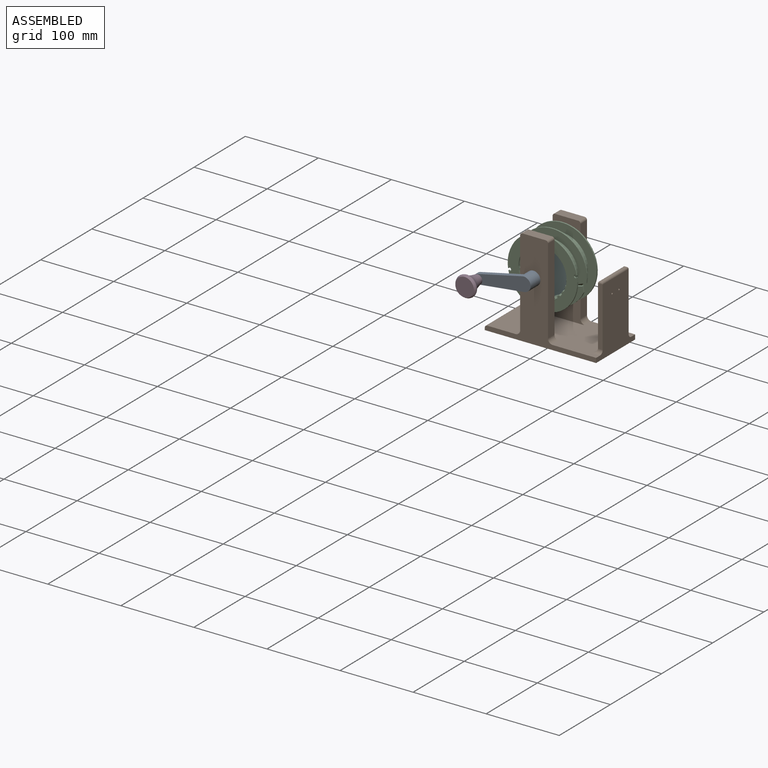
[diagram: assembled view]
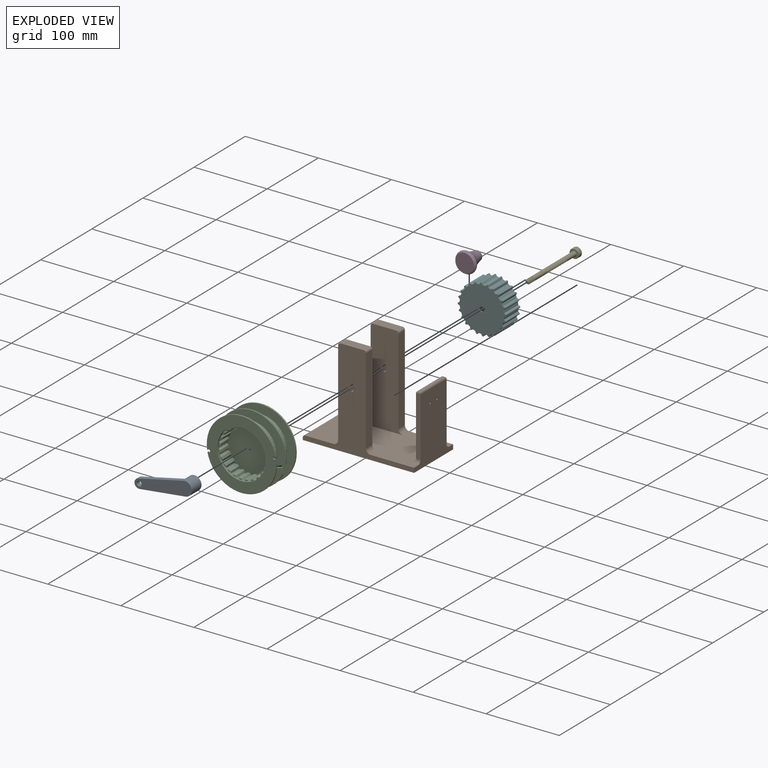
[diagram: exploded view]
GUIDED TOUR — MATED ASSEMBLY (Onshape document 6714cd51ec604e4e40236f5f, AutoMate assembly 6714cd51ec604e4e40236f5f_45a4a3afad252d01194e611c_0f985e746c176b7030d2f59f_default)

This assembly has 6 components, labeled P0..P5 below (a component is one placed occurrence of a part; the same part can appear more than once), held together by 5 mates. A mate is a constraint between two components; its type names the relative motion it leaves free:
  CYLINDRICAL — leaves both rotation about and translation along the listed axis free,
  FASTENED — locks the two components together rigidly (no relative motion).
Axis/direction vectors are unit vectors and 'through' points are millimeter coordinates, both in the assembly's world frame.

MATES
  1. FASTENED "Fastened 3": P5 <-> P4, direction (0.000, -1.000, 0.000) through (-13.11, -38.14, 1.50) mm
  2. FASTENED "Fastened 2": P4 <-> P0, direction (0.000, -1.000, 0.000) through (-13.11, -87.49, 1.50) mm
  3. CYLINDRICAL "Cylindrical 1": P4 <-> P1, axis (0.000, -1.000, 0.000) through (-13.11, 3.95, 1.50) mm
  4. CYLINDRICAL "Cylindrical 2": P3 <-> P0, axis (0.000, 1.000, 0.000) through (-75.73, -94.47, -9.05) mm
  5. FASTENED "Fastened 1": P5 <-> P2, direction (0.000, 1.000, 0.000) through (-13.11, -19.09, 1.50) mm

ASSEMBLY ORDER
  1. P4 — the base component [order heuristic]
  2. P5 — core [order heuristic]
  3. P1 [order verified]
  4. P2 — core [order heuristic]
  5. P0 — core [order heuristic]
  6. P3 [order verified]
Order-tag legend:
  [order verified] — this step's position reverses a verified removal order: the component was checked to insert without passing through the ones already placed.
  [order heuristic] — the first 4 components form the assembly's core: parts whose collision-free extraction could not be verified, listed in mate-graph order.

Of the 6 components, 1 carries the full construction recipe — the FeatureScript program that regenerates the part's solid from scratch; the rest are supplied as boundary geometry only.
Each toured component is shown spotlighted twice — in the assembled view, then in the exploded view, where a leader line traces a displaced component back to its assembled socket (saturated green if recipe-attached, orange if geometry-only; every other component desaturated gray) — followed by its recipe or geometry summary and the mates that hold it.
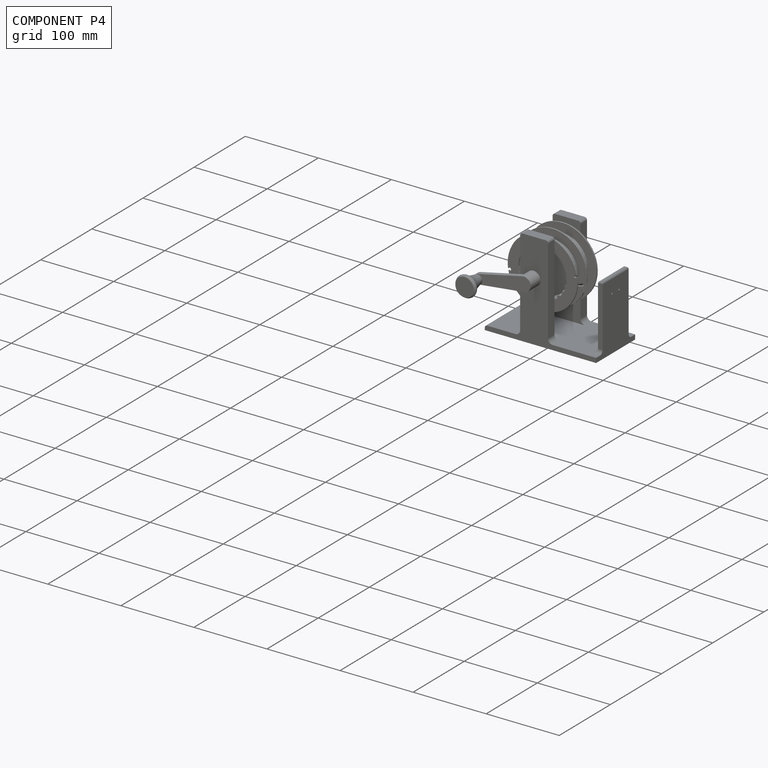
[diagram: component P4 — assembled]
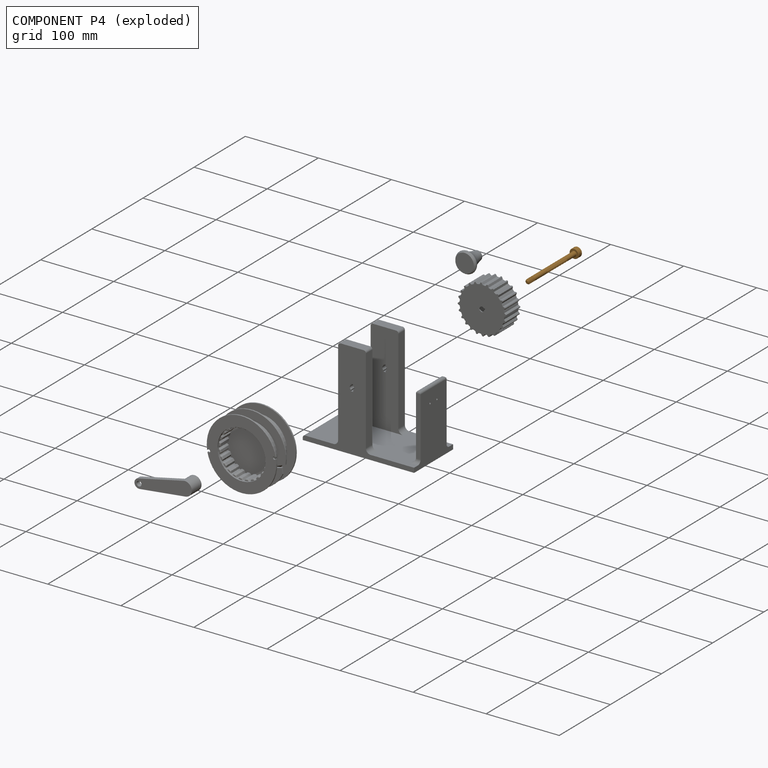
[diagram: component P4 — exploded]
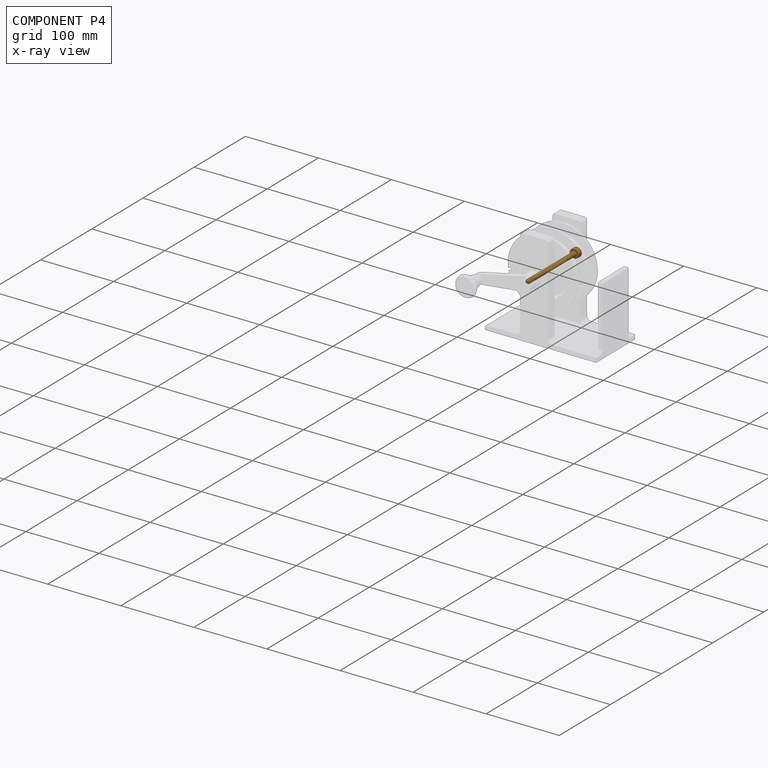
[diagram: component P4 — x-ray view]
COMPONENT P4 — geometry summary (no construction recipe available for this part):
  bounding box: 99.0 x 13.7 x 13.7 mm
  B-rep topology: 1 solid, 32 faces, 150 edges
  volume: 2486 mm^3 (13% of its bounding box)
Held by: FASTENED mate "Fastened 3" to P5; FASTENED mate "Fastened 2" to P0; CYLINDRICAL mate "Cylindrical 1" to P1.
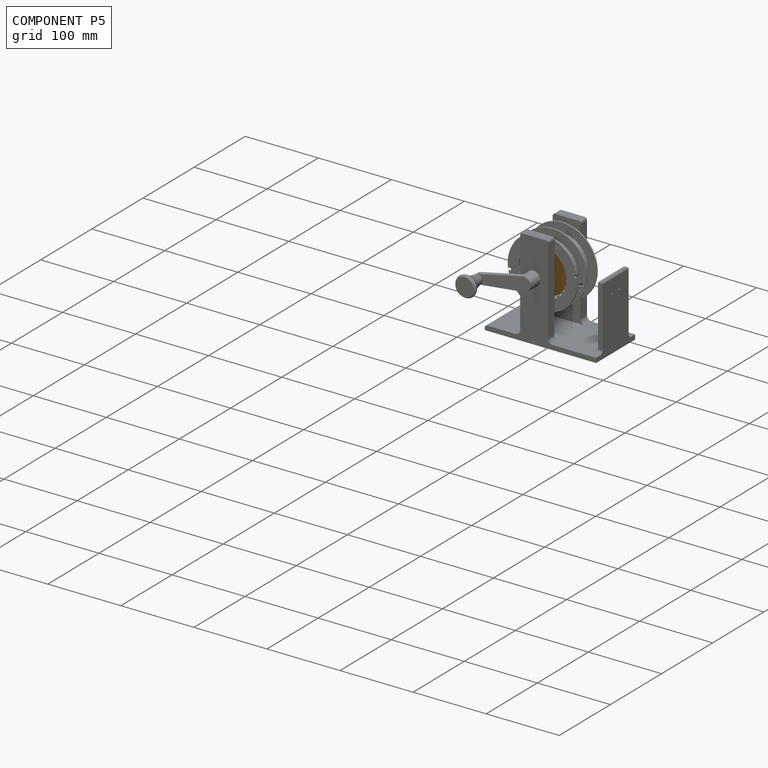
[diagram: component P5 — assembled]
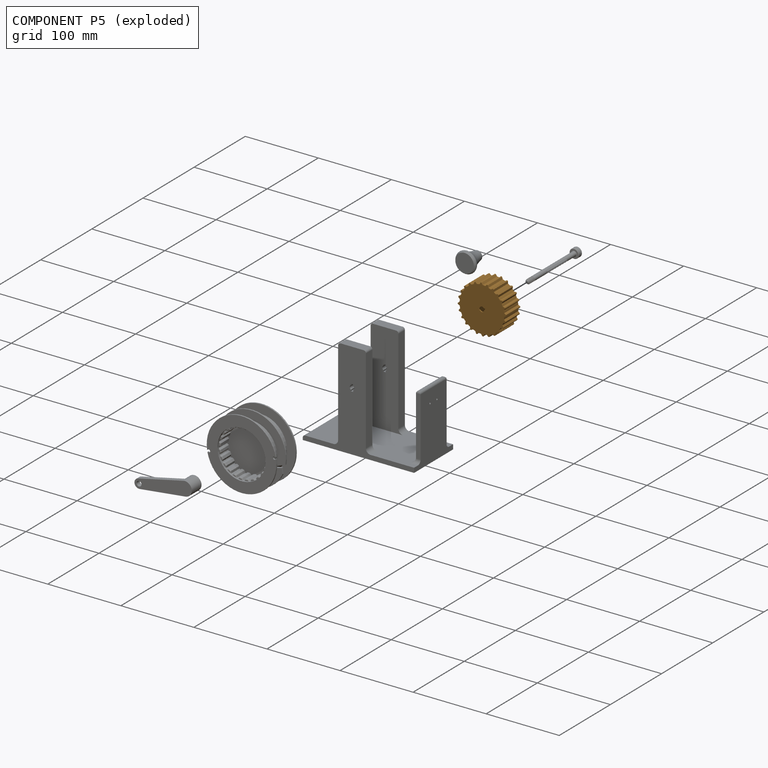
[diagram: component P5 — exploded]
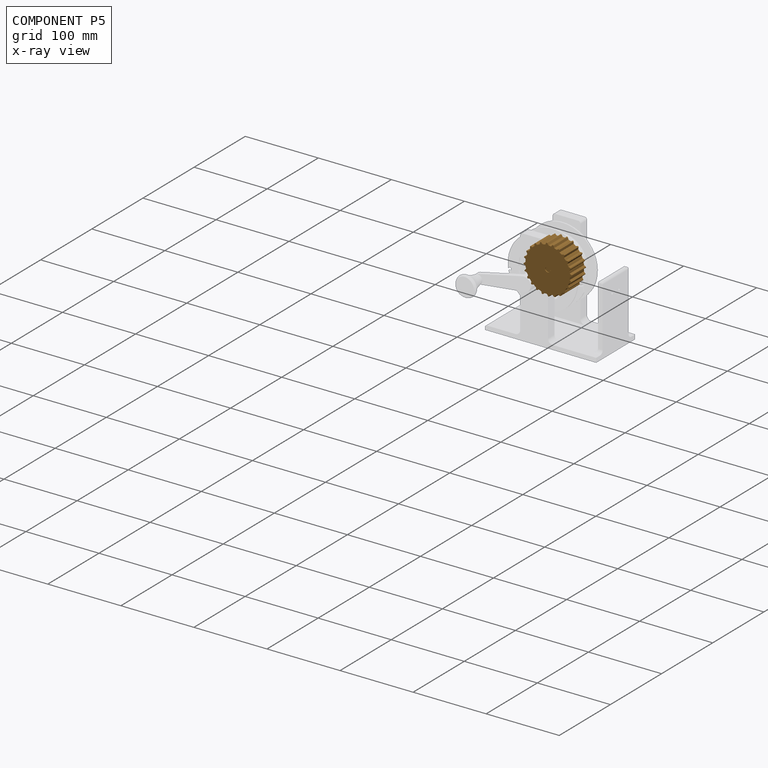
[diagram: component P5 — x-ray view]
COMPONENT P5 — geometry summary (no construction recipe available for this part):
  bounding box: 65.6 x 65.6 x 27.9 mm
  B-rep topology: 1 solid, 117 faces, 678 edges
  volume: 26886 mm^3 (22% of its bounding box)
  symmetry: 2-fold rotationally symmetric about the x axis; 4-fold rotationally symmetric about the y axis; 2-fold rotationally symmetric about the z axis; mirror-symmetric across its x mid-plane, y mid-plane, z mid-plane
Held by: FASTENED mate "Fastened 3" to P4; FASTENED mate "Fastened 1" to P2.
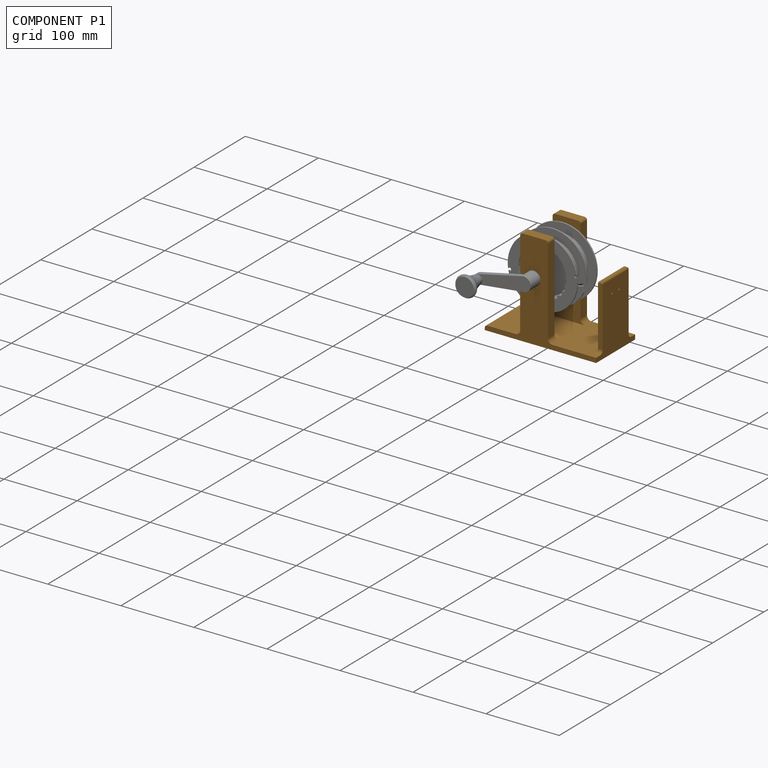
[diagram: component P1 — assembled]
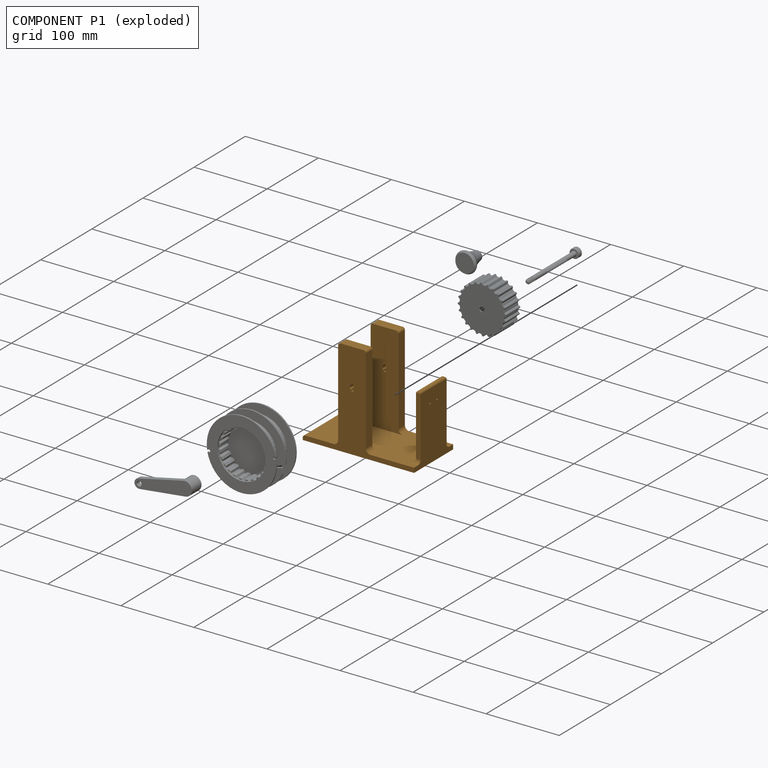
[diagram: component P1 — exploded]
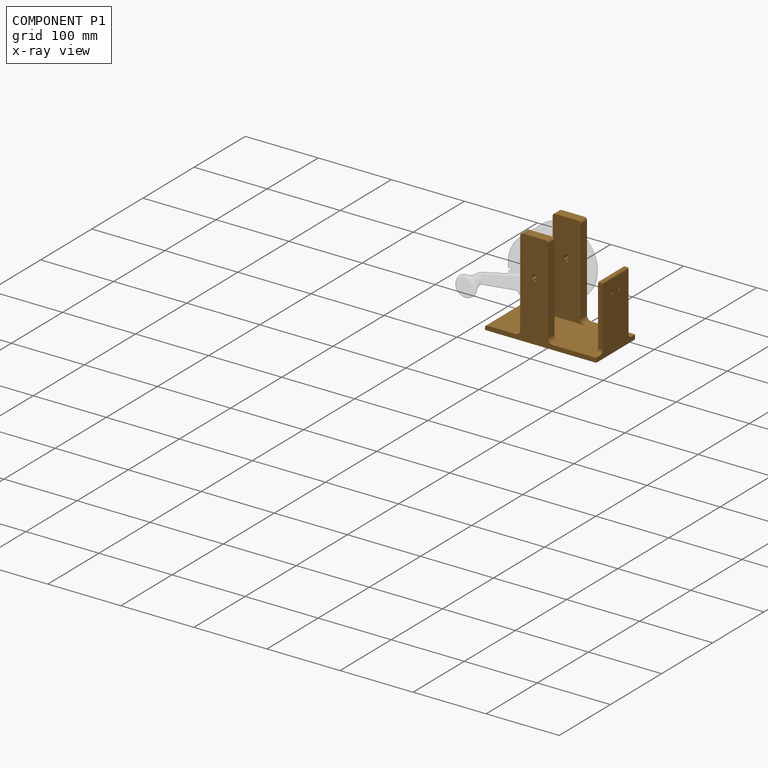
[diagram: component P1 — x-ray view]
COMPONENT P1 — geometry summary (no construction recipe available for this part):
  bounding box: 152.4 x 133.4 x 76.2 mm
  B-rep topology: 1 solid, 50 faces, 280 edges
  volume: 224510 mm^3 (14% of its bounding box)
  symmetry: mirror-symmetric across its y mid-plane
Held by: CYLINDRICAL mate "Cylindrical 1" to P4.
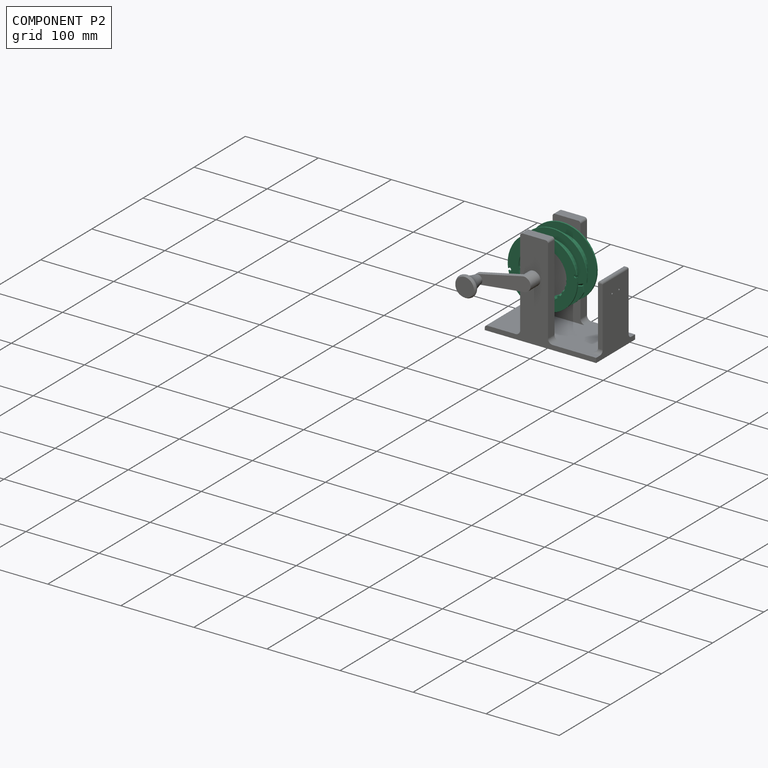
[diagram: component P2 — assembled]
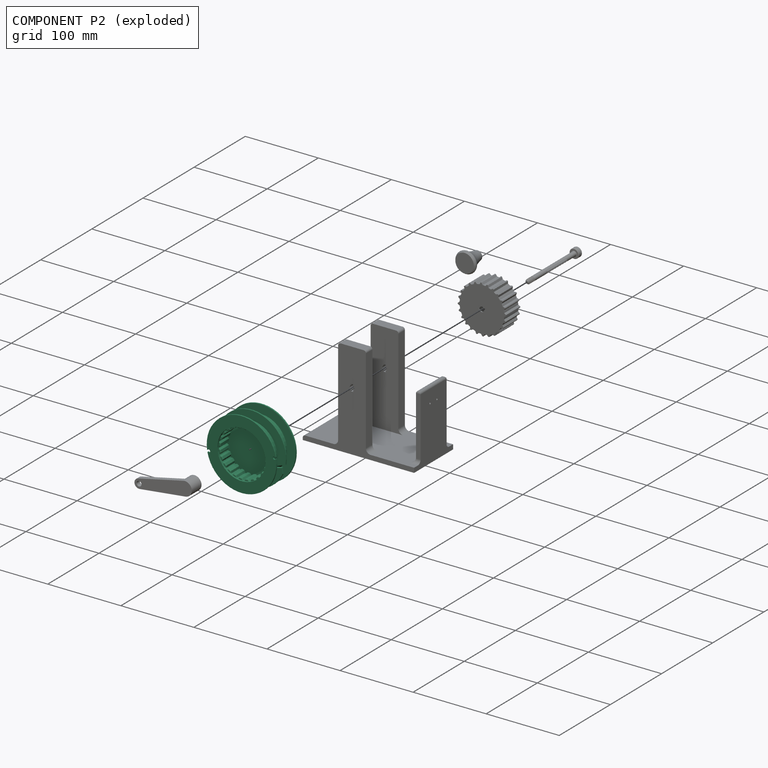
[diagram: component P2 — exploded]
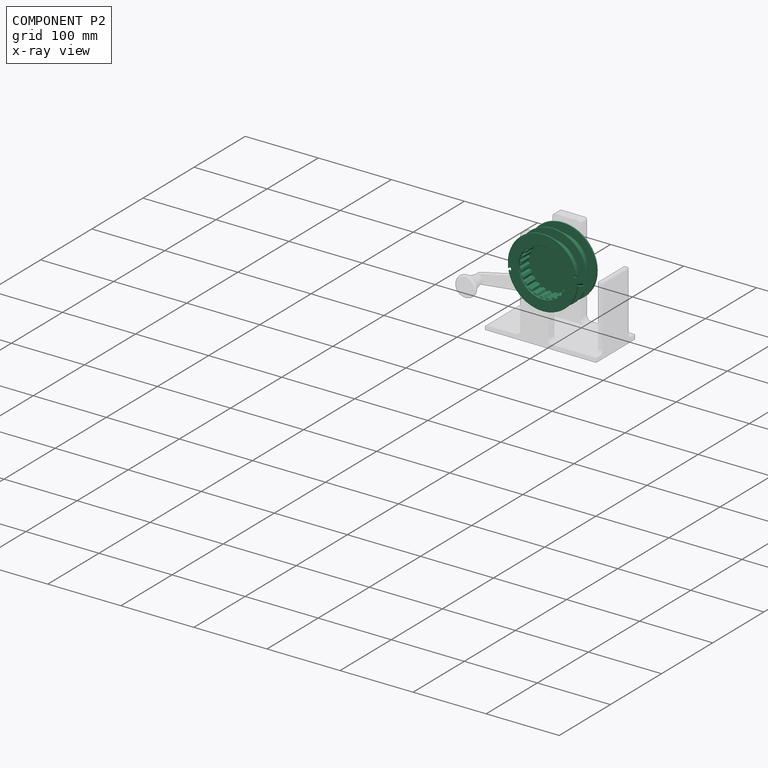
[diagram: component P2 — x-ray view]
COMPONENT P2 — recipe-attached (CADFS 00684136, mesh-verified: the recipe's output STEP matches this component's geometry to below the mesh-comparison resolution (tessellation chordal tolerance ~0.213 mm)).
Held by: FASTENED mate "Fastened 1" to P5.
Construction recipe (FeatureScript — the CAD program that rebuilds this solid; sketch coordinates are in the units given by the * unit suffixes, e.g. mm):

FeatureScript 1511;
import(path : "onshape/std/geometry.fs", version : "1511.0");
import(path : "onshape/std/common.fs", version : "1511.0");
const mm = millimeter;
const VERTEX = EntityType.VERTEX;
const EDGE = EntityType.EDGE;
const FACE = EntityType.FACE;
const BODY = EntityType.BODY;
function v(x, y){return vector(x, y);}
function OD(order){return orderDisambiguation(order);}
function OSD(set){return originalSetDisambiguation(set);}
function TD(topology){return topologyDisambiguation(topology);}
function TDD(query){return trueDependencyDisambiguation(query);}
function sQuery(a, b, c) {return sketchEntityQuery(a, b, c);}

annotation { "Feature Type Name" : "Feature", "Feature Type Description" : "" }
export const myFeature = defineFeature(function(context is Context, id is Id, definition is map)
    precondition{}
    {
        {
            var Q0;
            Q0=qCreatedBy(makeId("Front.planeOp"),FACE);
            var sketch = newSketch(context, id + "F0", { "sketchPlane" : qUnion([Q0])});
            skCircle(sketch, "E0", {"center": v(0, 0) * mm, "radius": 33.02 * mm});
            skCircle(sketch, "E1", {"center": v(0, 0) * mm, "radius": 30.48 * mm});
            skLineSegment(sketch, "E2", {"start": v(0, 30.48) * mm, "end": v(0, 33.02) * mm, "construction": true});
            skLineSegment(sketch, "E3", {"start": v(-1.7, 30.48) * mm, "end": v(1.7, 30.48) * mm});
            skLineSegment(sketch, "E4", {"start": v(-3.66, 33.02) * mm, "end": v(3.66, 33.02) * mm});
            skLineSegment(sketch, "E5", {"start": v(-3.66, 33.02) * mm, "end": v(-3.66, 24.87) * mm, "construction": true});
            skLineSegment(sketch, "E6", {"start": v(3.66, 33.02) * mm, "end": v(3.66, 24.07) * mm, "construction": true});
            skArc(sketch, "E7", {"start": v(-1.7, 30.48) * mm, "mid": v(0, 30.48) * mm, "end": v(1.7, 30.48) * mm});
            skLineSegment(sketch, "E8", {"start": v(-1.7, 30.48) * mm, "end": v(-3.66, 32.82) * mm});
            skLineSegment(sketch, "E9", {"start": v(1.7, 30.48) * mm, "end": v(3.66, 32.8) * mm});
            skArc(sketch, "E10", {"start": v(3.66, 32.8) * mm, "mid": v(0, 33.02) * mm, "end": v(-3.66, 32.82) * mm});
            skSolve(sketch);
        }
        {
            var Q0;
            {var subQ4=sQuery(id+"F0.wireOp",EDGE,"E8");Q0=makeQuery(id+"F0.imprint","IMPRINT",FACE,{"disambiguationData":[TD([[makeQuery(id+"F0.imprint","IMPRINT",EDGE,{"derivedFrom":subQ4}),-1.0]])]});}
            extrude(context, id + "F1", {"entities" : qUnion([Q0]), "oppositeDirection" : true, "depth" : 27.94 * mm, "offsetDistance" : 25.4 * mm});
        }
        {
            var Q0;
            Q0=qCreatedBy(makeId("Right.planeOp"),FACE);
            var sketch = newSketch(context, id + "F2", { "sketchPlane" : qUnion([Q0])});
            skLineSegment(sketch, "E11", {"start": v(0, 0) * mm, "end": v(-58.04, 0) * mm, "construction": true});
            skSolve(sketch);
        }
        {
            var Q0;
            Q0=makeQuery(id+"F1.opExtrude","CAP_EDGE",EDGE,{"disambiguationData":[OSD([sQuery(id+"F0.wireOp",EDGE,"E8")])],"isStart":true});
            var Q1;
            Q1=makeQuery(id+"F1.opExtrude","CAP_EDGE",EDGE,{"disambiguationData":[OSD([sQuery(id+"F0.wireOp",EDGE,"E3")])],"isStart":true});
            var Q2;
            Q2=makeQuery(id+"F1.opExtrude","CAP_EDGE",EDGE,{"disambiguationData":[OSD([sQuery(id+"F0.wireOp",EDGE,"E9")])],"isStart":true});
            fillet(context, id + "F3", {"entities" : qUnion([Q0, Q1, Q2]), "radius" : 1.27 * mm, "tangentPropagation" : true, "allowEdgeOverflow" : false});
        }
        {
            var Q0;
            Q0=makeQuery(id+"F1.opExtrude","SWEPT_BODY",BODY,{"disambiguationData":[OSD([sQuery(id+"F0.wireOp",EDGE,"E0"),sQuery(id+"F0.wireOp",EDGE,"E3"),sQuery(id+"F0.wireOp",EDGE,"E8"),sQuery(id+"F0.wireOp",EDGE,"E9"),sQuery(id+"F0.wireOp",EDGE,"E10")])]});
            var Q1;
            Q1=sQuery(id+"F2.wireOp",EDGE,"E11");
            circularPattern(context, id + "F4", {"entities" : qUnion([Q0]), "axis" : qUnion([Q1]), "angle" : 360 * degree, "instanceCount" : 24, "equalSpace" : true});
        }
        {
            var Q0;
            Q0=qCreatedBy(makeId("Front.planeOp"),FACE);
            cPlane(context, id + "F5", {"entities" : qUnion([Q0]), "cplaneType" : CPlaneType.OFFSET, "offset" : 2.3 * mm, "width" : 152.4 * mm, "height" : 152.4 * mm});
        }
        {
            var Q0;
            Q0=qCreatedBy(id+"F5.planeOp",FACE);
            var sketch = newSketch(context, id + "F6", { "sketchPlane" : qUnion([Q0])});
            skCircle(sketch, "E12.1", {"center": v(0, 0) * mm, "radius": 33.02 * mm});
            skCircle(sketch, "E13", {"center": v(0, 0) * mm, "radius": 35.56 * mm});
            skArc(sketch, "E14", {"start": v(-1.4, 47.6) * mm, "mid": v(0, -47.62) * mm, "end": v(1.4, 47.6) * mm});
            skLineSegment(sketch, "E15", {"start": v(0, 47.63) * mm, "end": v(0, 43.56) * mm, "construction": true});
            skLineSegment(sketch, "E16", {"start": v(0, 43.56) * mm, "end": v(0, 46.36) * mm, "construction": true});
            skArc(sketch, "E17", {"start": v(-1.88, 46.36) * mm, "mid": v(0, 43.56) * mm, "end": v(1.88, 46.36) * mm});
            skLineSegment(sketch, "E18", {"start": v(-1.88, 46.36) * mm, "end": v(-1.4, 46.36) * mm});
            skLineSegment(sketch, "E19", {"start": v(1.4, 46.36) * mm, "end": v(1.4, 47.6) * mm});
            skLineSegment(sketch, "E20", {"start": v(-1.4, 46.36) * mm, "end": v(-1.4, 47.6) * mm});
            skPoint(sketch, "E21.orphan", {"position": v(-3.32, 46.36) * mm});
            skLineSegment(sketch, "E22.trimOffspring", {"start": v(1.4, 46.36) * mm, "end": v(1.88, 46.36) * mm});
            skLineSegment(sketch, "E23", {"start": v(0, 0) * mm, "end": v(16.3, 0) * mm, "construction": true});
            skLineSegment(sketch, "E24.MirrorCS", {"start": v(1.4, -46.36) * mm, "end": v(1.88, -46.36) * mm});
            skLineSegment(sketch, "E25.MirrorCS", {"start": v(1.4, -46.36) * mm, "end": v(1.4, -47.6) * mm});
            skLineSegment(sketch, "E26.MirrorCS", {"start": v(-1.88, -46.36) * mm, "end": v(-1.4, -46.36) * mm});
            skLineSegment(sketch, "E27.MirrorCS", {"start": v(-1.4, -46.36) * mm, "end": v(-1.4, -47.6) * mm});
            skLineSegment(sketch, "E28.MirrorCS", {"start": v(0, -47.63) * mm, "end": v(0, -43.56) * mm, "construction": true});
            skLineSegment(sketch, "E29.MirrorCS", {"start": v(0, -43.56) * mm, "end": v(0, -46.36) * mm, "construction": true});
            skPoint(sketch, "E30.MirrorP", {"position": v(-3.32, -46.36) * mm});
            skArc(sketch, "E31.MirrorCS", {"start": v(-1.88, -46.36) * mm, "mid": v(0, -43.56) * mm, "end": v(1.88, -46.36) * mm});
            skSolve(sketch);
        }
        {
            var Q0;
            Q0=makeQuery(id+"F6.imprint","IMPRINT",FACE,{"disambiguationData":[TD([[makeQuery(id+"F6.imprint","IMPRINT",EDGE,{"derivedFrom":sQuery(id+"F6.wireOp",EDGE,"E12.1")}),-1.0]])]});
            extrude(context, id + "F7", {"entities" : qUnion([Q0]), "operationType" : NewBodyOperationType.ADD, "oppositeDirection" : true, "depth" : 45.72 * mm, "offsetDistance" : 25.4 * mm});
        }
        {
            var Q0;
            Q0=makeQuery(id+"F4.opPattern","COPY",FACE,{"derivedFrom":makeQuery(id+"F1.opExtrude","CAP_FACE",FACE,{"disambiguationData":[OSD([sQuery(id+"F0.wireOp",EDGE,"E0"),sQuery(id+"F0.wireOp",EDGE,"E3"),sQuery(id+"F0.wireOp",EDGE,"E8"),sQuery(id+"F0.wireOp",EDGE,"E9"),sQuery(id+"F0.wireOp",EDGE,"E10")])],"isStart":false}),"instanceName":"4"});
            cPlane(context, id + "F8", {"entities" : qUnion([Q0]), "cplaneType" : CPlaneType.OFFSET, "offset" : 0 * mm, "width" : 152.4 * mm, "height" : 152.4 * mm});
        }
        {
            var Q0;
            Q0=qCreatedBy(id+"F8.planeOp",FACE);
            var sketch = newSketch(context, id + "F9", { "sketchPlane" : qUnion([Q0])});
            skCircle(sketch, "E32.0", {"center": v(0, 0) * mm, "radius": 30.48 * mm});
            skCircle(sketch, "E33.0", {"center": v(0, 0) * mm, "radius": 33.02 * mm});
            skSolve(sketch);
        }
        {
            var Q0;
            Q0 = qSketchRegion(id + "F9", true);
            var Q1;
            Q1=makeQuery(id+"F7.opExtrude","CAP_FACE",FACE,{"disambiguationData":[OSD([sQuery(id+"F6.wireOp",EDGE,"E12.1"),sQuery(id+"F6.wireOp",EDGE,"E13")])],"isStart":false});
            extrude(context, id + "F10", {"entities" : qUnion([Q0]), "operationType" : NewBodyOperationType.ADD, "endBound" : BoundingType.UP_TO_SURFACE, "depth" : 25.4 * mm, "endBoundEntityFace" : qUnion([Q1]), "offsetDistance" : 25.4 * mm});
        }
        {
            var Q0;
            Q0=makeQuery(id+"F7.opExtrude","CAP_EDGE",EDGE,{"disambiguationData":[OSD([sQuery(id+"F6.wireOp",EDGE,"E13")])],"isStart":false});
            fillet(context, id + "F11", {"entities" : qUnion([Q0]), "radius" : 2.03 * mm, "tangentPropagation" : true, "allowEdgeOverflow" : false});
        }
        {
            var Q0;
            Q0=makeQuery(id+"F6.imprint","IMPRINT",FACE,{"disambiguationData":[TD([[makeQuery(id+"F6.imprint","IMPRINT",EDGE,{"derivedFrom":sQuery(id+"F6.wireOp",EDGE,"E13")}),-1.0]])]});
            extrude(context, id + "F12", {"entities" : qUnion([Q0]), "operationType" : NewBodyOperationType.ADD, "oppositeDirection" : true, "depth" : 1.9 * mm, "offsetDistance" : 25.4 * mm});
        }
        {
            var Q0;
            {var subQ0=sQuery(id+"F6.wireOp",EDGE,"E13");var subQ1=sQuery(id+"F6.wireOp",EDGE,"E12.1");Q0=makeQuery(id+"F10.boolean.opBoolean","MERGE",FACE,{"derivedFrom":[makeQuery(id+"F7.opExtrude","CAP_FACE",FACE,{"disambiguationData":[OSD([subQ1,subQ0])],"isStart":false}),makeQuery(id+"F10.opExtrude","CAP_FACE",FACE,{"disambiguationData":[OSD([subQ1,subQ0])],"isStart":false})]});}
            cPlane(context, id + "F13", {"entities" : qUnion([Q0]), "cplaneType" : CPlaneType.OFFSET, "offset" : 5.7 * mm, "oppositeDirection" : true, "width" : 152.4 * mm, "height" : 152.4 * mm});
        }
        {
            var Q0;
            Q0=qCreatedBy(id+"F13.planeOp",FACE);
            var sketch = newSketch(context, id + "F14", { "sketchPlane" : qUnion([Q0])});
            skCircle(sketch, "E34.0", {"center": v(0, 0) * mm, "radius": 47.63 * mm});
            skCircle(sketch, "E35.0", {"center": v(0, 0) * mm, "radius": 35.56 * mm});
            skSolve(sketch);
        }
        {
            var Q0;
            Q0 = qSketchRegion(id + "F14", true);
            extrude(context, id + "F15", {"entities" : qUnion([Q0]), "operationType" : NewBodyOperationType.ADD, "oppositeDirection" : true, "depth" : 1.9 * mm, "offsetDistance" : 25.4 * mm});
        }
        {
            var Q0;
            Q0=makeQuery(id+"F15.opExtrude","CAP_FACE",FACE,{"disambiguationData":[OSD([sQuery(id+"F14.wireOp",EDGE,"E34.0"),sQuery(id+"F14.wireOp",EDGE,"E35.0")])],"isStart":true});
            cPlane(context, id + "F16", {"entities" : qUnion([Q0]), "cplaneType" : CPlaneType.OFFSET, "offset" : 21.2 * mm, "oppositeDirection" : true, "width" : 152.4 * mm, "height" : 152.4 * mm});
        }
        {
            var Q0;
            Q0=qCreatedBy(id+"F16.planeOp",FACE);
            var sketch = newSketch(context, id + "F17", { "sketchPlane" : qUnion([Q0])});
            skArc(sketch, "E36.0", {"start": v(-15.26, 45.12) * mm, "mid": v(42.53, 21.43) * mm, "end": v(27.19, -39.1) * mm});
            skCircle(sketch, "E36.1", {"center": v(0, 0) * mm, "radius": 35.56 * mm});
            skLineSegment(sketch, "E37", {"start": v(0, 55.44) * mm, "end": v(0, -63.33) * mm, "construction": true});
            skLineSegment(sketch, "E38", {"start": v(0, 0) * mm, "end": v(-27.98, 48.47) * mm, "construction": true});
            skLineSegment(sketch, "E39", {"start": v(-17.78, 30.8) * mm, "end": v(-15.26, 45.12) * mm});
            skPoint(sketch, "E39.endSnap0", {"position": v(-14, 24.23) * mm});
            skPoint(sketch, "E40.orphan", {"position": v(-14, 52.29) * mm});
            skLineSegment(sketch, "E41", {"start": v(-19.93, 29.45) * mm, "end": v(-19.26, 39.1) * mm});
            skLineSegment(sketch, "E42.0", {"start": v(-21.27, 28.5) * mm, "end": v(-20.53, 39.1) * mm});
            skLineSegment(sketch, "E43", {"start": v(-19.26, 39.1) * mm, "end": v(-27.19, 39.1) * mm});
            skLineSegment(sketch, "E44", {"start": v(0, 0) * mm, "end": v(-26.94, -15.55) * mm, "construction": true});
            skPoint(sketch, "E45.MirrorP", {"position": v(14, -24.23) * mm});
            skLineSegment(sketch, "E46.MirrorCS", {"start": v(19.93, -29.45) * mm, "end": v(19.26, -39.1) * mm});
            skLineSegment(sketch, "E47.MirrorCS", {"start": v(21.27, -28.5) * mm, "end": v(20.53, -39.1) * mm});
            skLineSegment(sketch, "E48.MirrorCS", {"start": v(19.26, -39.1) * mm, "end": v(27.19, -39.1) * mm});
            skLineSegment(sketch, "E49.MirrorCS", {"start": v(17.78, -30.8) * mm, "end": v(15.26, -45.12) * mm});
            skArc(sketch, "E50.trimOffspring", {"start": v(15.26, -45.12) * mm, "mid": v(-42.53, -21.43) * mm, "end": v(-27.19, 39.1) * mm});
            skSolve(sketch);
        }
        {
            var Q0;
            Q0 = qSketchRegion(id + "F17", true);
            extrude(context, id + "F18", {"entities" : qUnion([Q0]), "operationType" : NewBodyOperationType.ADD, "depth" : 1.78 * mm, "offsetDistance" : 25.4 * mm});
        }
        {
            var Q0;
            {var subQ0=sQuery(id+"F17.wireOp",EDGE,"E41");Q0=makeQuery(id+"F17.imprint","IMPRINT",FACE,{"disambiguationData":[TD([[makeQuery(id+"F17.imprint","IMPRINT",EDGE,{"derivedFrom":subQ0}),1.0]])]});}
            extrude(context, id + "F19", {"entities" : qUnion([Q0]), "operationType" : NewBodyOperationType.ADD, "depth" : 2.54 * mm, "offsetDistance" : 25.4 * mm, "hasSecondDirection" : true, "secondDirectionOppositeDirection" : false, "secondDirectionDepth" : -0.76 * mm});
        }
        {
            var Q0;
            {var subQ0=sQuery(id+"F17.wireOp",EDGE,"E47.MirrorCS");Q0=makeQuery(id+"F17.imprint","IMPRINT",FACE,{"disambiguationData":[TD([[makeQuery(id+"F17.imprint","IMPRINT",EDGE,{"derivedFrom":subQ0}),-1.0]])]});}
            extrude(context, id + "F20", {"entities" : qUnion([Q0]), "operationType" : NewBodyOperationType.ADD, "depth" : 2.54 * mm, "offsetDistance" : 25.4 * mm, "hasSecondDirection" : true, "secondDirectionOppositeDirection" : false, "secondDirectionDepth" : -0.76 * mm});
        }
    });
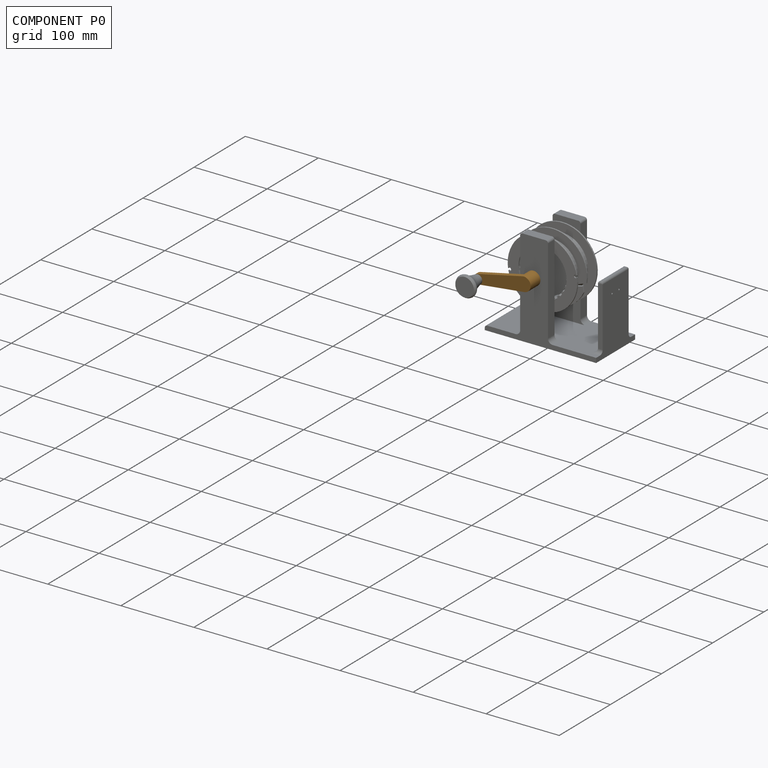
[diagram: component P0 — assembled]
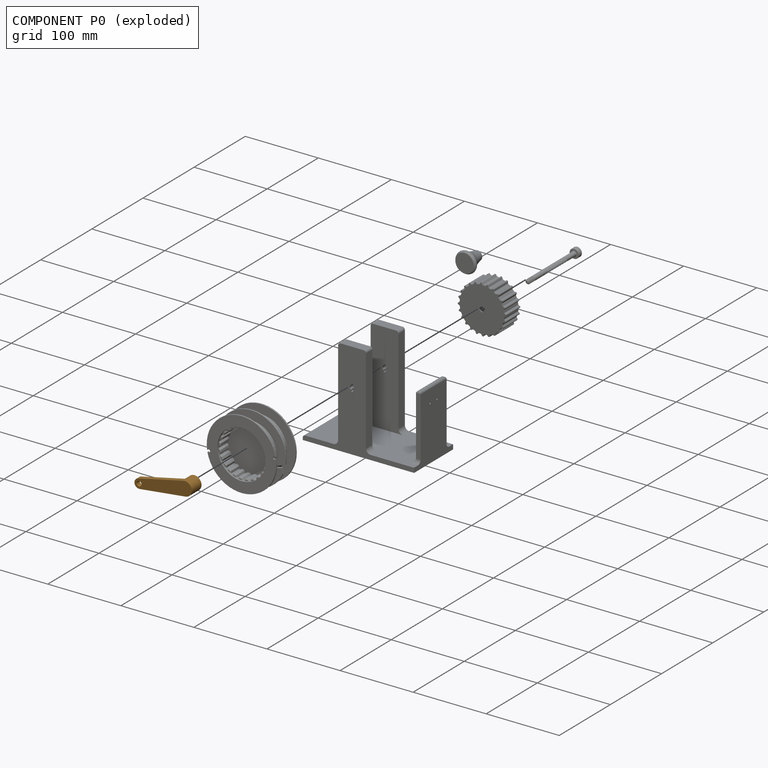
[diagram: component P0 — exploded]
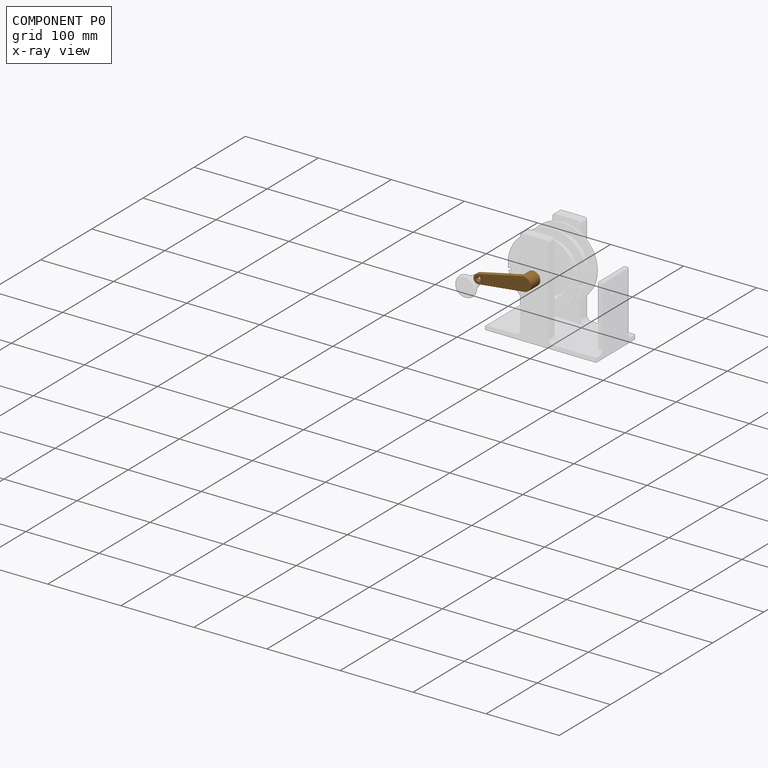
[diagram: component P0 — x-ray view]
COMPONENT P0 — geometry summary (no construction recipe available for this part):
  bounding box: 80.5 x 21.0 x 20.2 mm
  B-rep topology: 1 solid, 19 faces, 100 edges
  volume: 10542 mm^3 (31% of its bounding box)
Held by: FASTENED mate "Fastened 2" to P4; CYLINDRICAL mate "Cylindrical 2" to P3.
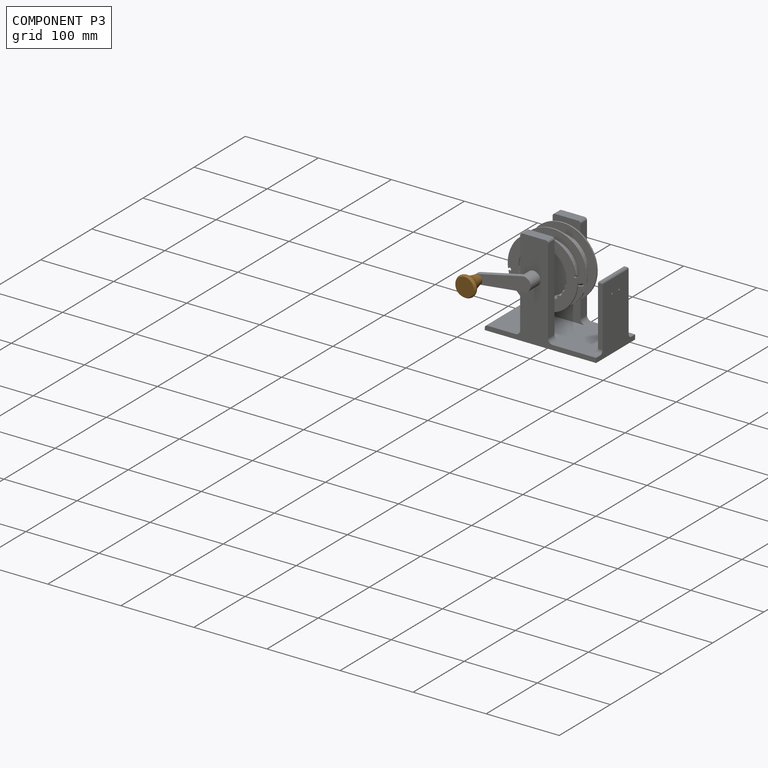
[diagram: component P3 — assembled]
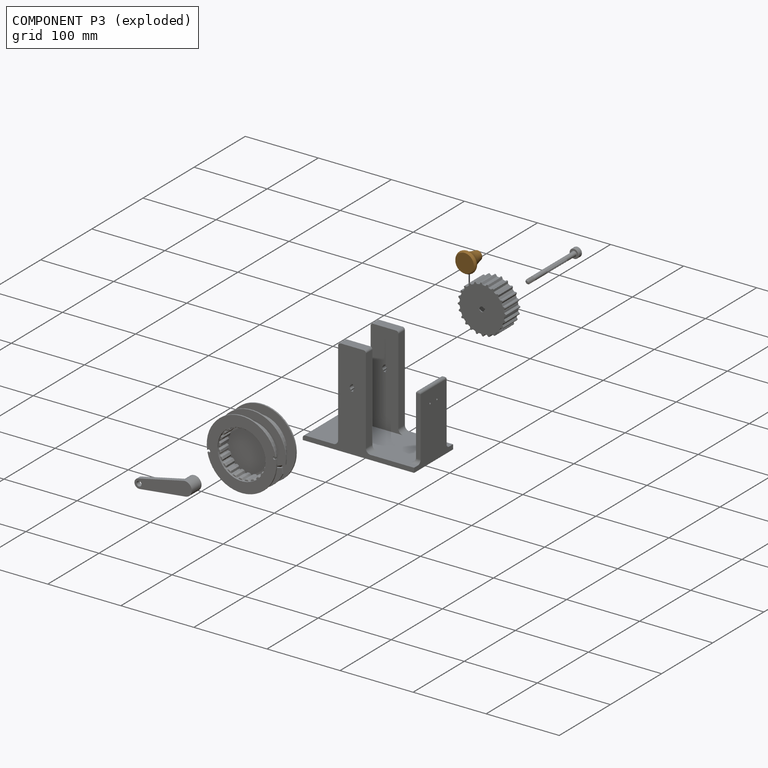
[diagram: component P3 — exploded]
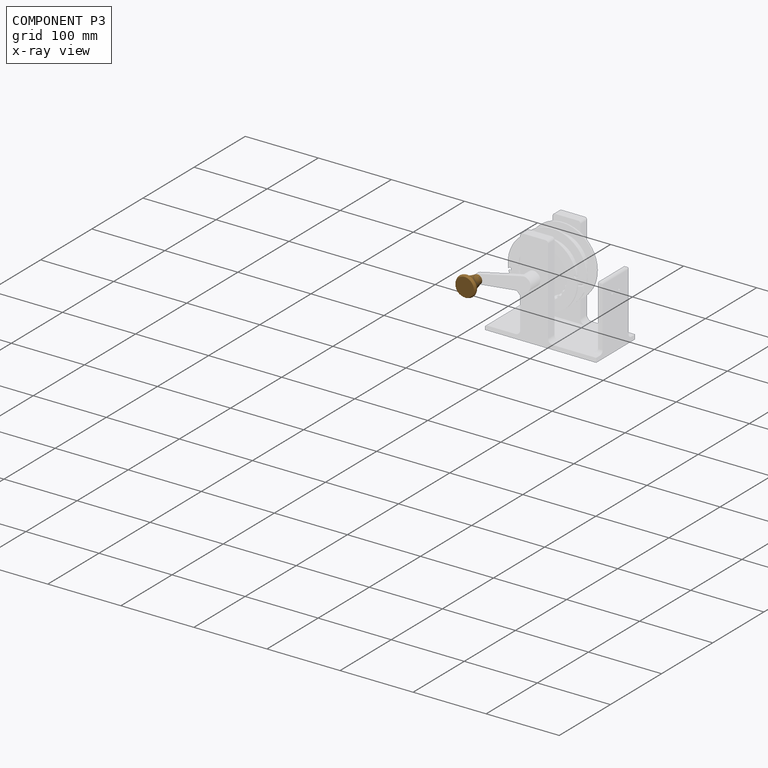
[diagram: component P3 — x-ray view]
COMPONENT P3 — geometry summary (no construction recipe available for this part):
  bounding box: 30.2 x 30.2 x 25.4 mm
  B-rep topology: 1 solid, 5 faces, 15 edges
  volume: 8254 mm^3 (36% of its bounding box)
  symmetry: revolution-symmetric about the y axis through its bounding-box center; mirror-symmetric across its x mid-plane, z mid-plane
Held by: CYLINDRICAL mate "Cylindrical 2" to P0.
PROVENANCE & LICENSES
Assembly (occurrences, transforms, mates, per-part STEP geometry): AutoMate dataset, Zenodo record 7776208, CC0.
Construction recipes: CADFS (HuggingFace VladPyatov/CADFS, CC-BY-4.0, layered over the ABC dataset), FeatureScript reconstruction programs keyed by ABC model id.
Join: ABC meta listings map ABC model id -> Onshape documentId; within a shared document, parts are matched by geometric signature (bounding-box dims + volume at 0.1% relative tolerance, exact B-rep face/solid counts).
Verification: 1 of this assembly's 6 components carries a recipe attachment, and every attachment is mesh-verified: the CADFS STEP and the AutoMate member STEP were compared as meshes in their shared local frame (symmetric sampled-point-to-mesh distance); worst across the 1 attachment: below the mesh-comparison resolution (tessellation chordal tolerance ~0.213 mm) on a 142 mm part.
Renders: orthographic iso camera (az 35 / el 25); the floor grid conveys scale (grid pitch printed in each image; no ruler). In the exploded view each component is displaced by its stored offset vector: the offsets alone carry the explosion direction (mate normal/axis signs are not orientation cues and do not encode it), and separation distances are assigned per mate-chain, not proportionally to assembly-order depth.
